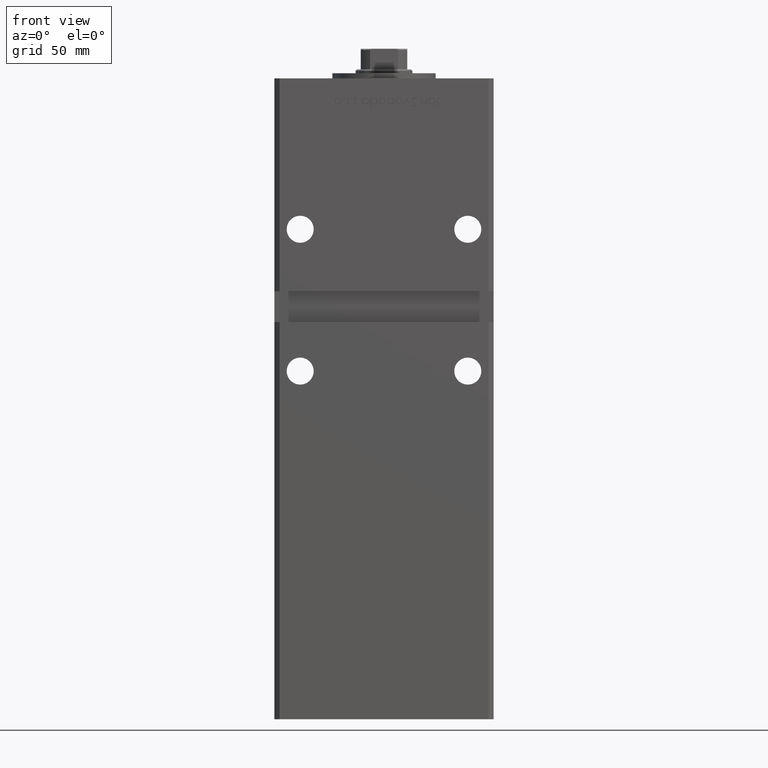
[diagram: clean part render]
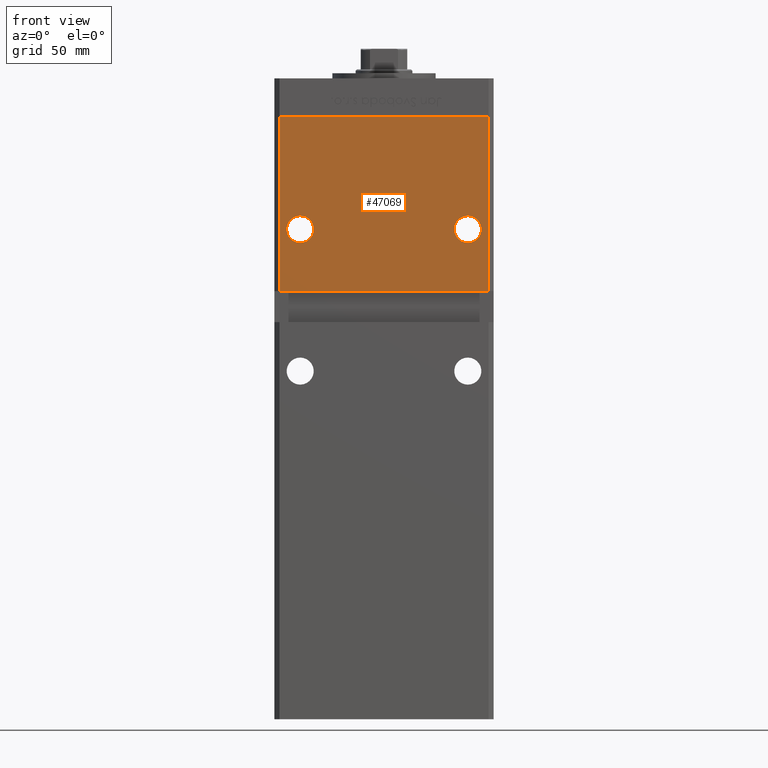
[diagram: same view with one face highlighted and labeled with its STEP entity id]
A machine part, front view. The second image highlights one B-rep face of the part: STEP entity #47069.
In plain terms, the highlighted planar face has unit normal (0, 1, 0).
Its self-contained STEP definition (entity closure, byte-faithful):
#567 = FACE_BOUND ( 'NONE', #22140, .T. ) ;
#740 = DIRECTION ( 'NONE',  ( -1.000000000000000000, -0.000000000000000000, -0.000000000000000000 ) ) ;
#995 = EDGE_CURVE ( 'NONE', #7177, #24782, #27315, .T. ) ;
#1103 = DIRECTION ( 'NONE',  ( 0.000000000000000000, 1.000000000000000000, 0.000000000000000000 ) ) ;
#2657 = DIRECTION ( 'NONE',  ( 0.000000000000000000, 0.000000000000000000, 1.000000000000000000 ) ) ;
#2930 = AXIS2_PLACEMENT_3D ( 'NONE', #42464, #19309, #2657 ) ;
#3134 = ORIENTED_EDGE ( 'NONE', *, *, #44587, .T. ) ;
#4013 = VECTOR ( 'NONE', #20415, 1000.000000000000000 ) ;
#4592 = CARTESIAN_POINT ( 'NONE',  ( 40.49999999999998579, -37.50000000000000711, 218.5000000000000000 ) ) ;
#5963 = CIRCLE ( 'NONE', #35995, 5.250000000000004441 ) ;
#6447 = CARTESIAN_POINT ( 'NONE',  ( -32.50000000000000000, -37.50000000000000711, 169.7500000000000000 ) ) ;
#7177 = VERTEX_POINT ( 'NONE', #4592 ) ;
#7766 = CARTESIAN_POINT ( 'NONE',  ( -32.50000000000000000, -37.50000000000000711, 175.0000000000000284 ) ) ;
#7912 = VERTEX_POINT ( 'NONE', #7919 ) ;
#7919 = CARTESIAN_POINT ( 'NONE',  ( 32.50000000000000000, -37.50000000000000711, 180.2500000000000284 ) ) ;
#9208 = AXIS2_PLACEMENT_3D ( 'NONE', #17582, #10320, #29947 ) ;
#10320 = DIRECTION ( 'NONE',  ( 0.000000000000000000, 1.000000000000000000, 0.000000000000000000 ) ) ;
#10654 = ORIENTED_EDGE ( 'NONE', *, *, #25042, .T. ) ;
#11084 = ORIENTED_EDGE ( 'NONE', *, *, #31094, .T. ) ;
#11175 = DIRECTION ( 'NONE',  ( -0.000000000000000000, -0.000000000000000000, -1.000000000000000000 ) ) ;
#11517 = CIRCLE ( 'NONE', #2930, 5.250000000000004441 ) ;
#11704 = VECTOR ( 'NONE', #48582, 1000.000000000000000 ) ;
#12381 = AXIS2_PLACEMENT_3D ( 'NONE', #7766, #42166, #49950 ) ;
#13584 = CARTESIAN_POINT ( 'NONE',  ( -40.49999999999998579, -37.50000000000000711, 218.5000000000000000 ) ) ;
#14469 = VERTEX_POINT ( 'NONE', #15365 ) ;
#14700 = CARTESIAN_POINT ( 'NONE',  ( 40.49999999999998579, -37.50000000000000711, 218.5000000000000000 ) ) ;
#15365 = CARTESIAN_POINT ( 'NONE',  ( -32.50000000000000000, -37.50000000000000711, 180.2500000000000284 ) ) ;
#15541 = LINE ( 'NONE', #32445, #11704 ) ;
#15657 = VERTEX_POINT ( 'NONE', #6447 ) ;
#16327 = EDGE_LOOP ( 'NONE', ( #24660, #3134 ) ) ;
#17372 = EDGE_CURVE ( 'NONE', #30579, #40798, #15541, .T. ) ;
#17493 = FACE_BOUND ( 'NONE', #16327, .T. ) ;
#17582 = CARTESIAN_POINT ( 'NONE',  ( 32.50000000000000000, -37.50000000000000711, 175.0000000000000284 ) ) ;
#17968 = DIRECTION ( 'NONE',  ( 0.000000000000000000, 1.000000000000000000, 0.000000000000000000 ) ) ;
#18675 = EDGE_CURVE ( 'NONE', #30579, #7177, #44885, .T. ) ;
#19034 = EDGE_CURVE ( 'NONE', #24782, #40798, #30039, .T. ) ;
#19309 = DIRECTION ( 'NONE',  ( 0.000000000000000000, 1.000000000000000000, 0.000000000000000000 ) ) ;
#20365 = CIRCLE ( 'NONE', #9208, 5.250000000000004441 ) ;
#20415 = DIRECTION ( 'NONE',  ( 1.000000000000000000, 0.000000000000000000, 0.000000000000000000 ) ) ;
#20624 = ORIENTED_EDGE ( 'NONE', *, *, #17372, .T. ) ;
#20929 = CARTESIAN_POINT ( 'NONE',  ( 32.50000000000000000, -37.50000000000000711, 169.7500000000000000 ) ) ;
#20969 = FACE_OUTER_BOUND ( 'NONE', #31844, .T. ) ;
#21083 = CARTESIAN_POINT ( 'NONE',  ( 40.49999999999997868, -37.50000000000000711, 151.0000000000000568 ) ) ;
#22140 = EDGE_LOOP ( 'NONE', ( #10654, #11084 ) ) ;
#22652 = CIRCLE ( 'NONE', #12381, 5.250000000000004441 ) ;
#24660 = ORIENTED_EDGE ( 'NONE', *, *, #30119, .T. ) ;
#24782 = VERTEX_POINT ( 'NONE', #21083 ) ;
#25042 = EDGE_CURVE ( 'NONE', #14469, #15657, #5963, .T. ) ;
#25729 = CARTESIAN_POINT ( 'NONE',  ( -42.49999999999998579, -37.50000000000000711, 151.0000000000000568 ) ) ;
#27315 = LINE ( 'NONE', #14700, #40536 ) ;
#29303 = ORIENTED_EDGE ( 'NONE', *, *, #18675, .F. ) ;
#29514 = CARTESIAN_POINT ( 'NONE',  ( -32.50000000000000000, -37.50000000000000711, 175.0000000000000284 ) ) ;
#29853 = PLANE ( 'NONE',  #39349 ) ;
#29947 = DIRECTION ( 'NONE',  ( 0.000000000000000000, 0.000000000000000000, 1.000000000000000000 ) ) ;
#30039 = LINE ( 'NONE', #25729, #34939 ) ;
#30119 = EDGE_CURVE ( 'NONE', #7912, #50070, #11517, .T. ) ;
#30579 = VERTEX_POINT ( 'NONE', #13584 ) ;
#31094 = EDGE_CURVE ( 'NONE', #15657, #14469, #22652, .T. ) ;
#31844 = EDGE_LOOP ( 'NONE', ( #20624, #45249, #46573, #29303 ) ) ;
#32445 = CARTESIAN_POINT ( 'NONE',  ( -40.49999999999998579, -37.50000000000000711, 218.5000000000000000 ) ) ;
#34939 = VECTOR ( 'NONE', #740, 1000.000000000000000 ) ;
#35995 = AXIS2_PLACEMENT_3D ( 'NONE', #29514, #17968, #38389 ) ;
#38389 = DIRECTION ( 'NONE',  ( 0.000000000000000000, 0.000000000000000000, 1.000000000000000000 ) ) ;
#39349 = AXIS2_PLACEMENT_3D ( 'NONE', #41966, #1103, #49485 ) ;
#40536 = VECTOR ( 'NONE', #11175, 1000.000000000000000 ) ;
#40798 = VERTEX_POINT ( 'NONE', #45245 ) ;
#41966 = CARTESIAN_POINT ( 'NONE',  ( -40.49999999999998579, -37.50000000000000711, 218.5000000000000000 ) ) ;
#42166 = DIRECTION ( 'NONE',  ( 0.000000000000000000, 1.000000000000000000, 0.000000000000000000 ) ) ;
#42464 = CARTESIAN_POINT ( 'NONE',  ( 32.50000000000000000, -37.50000000000000711, 175.0000000000000284 ) ) ;
#44587 = EDGE_CURVE ( 'NONE', #50070, #7912, #20365, .T. ) ;
#44885 = LINE ( 'NONE', #52959, #4013 ) ;
#45245 = CARTESIAN_POINT ( 'NONE',  ( -40.49999999999998579, -37.50000000000000711, 151.0000000000000568 ) ) ;
#45249 = ORIENTED_EDGE ( 'NONE', *, *, #19034, .F. ) ;
#46573 = ORIENTED_EDGE ( 'NONE', *, *, #995, .F. ) ;
#47069 = ADVANCED_FACE ( 'NONE', ( #17493, #567, #20969 ), #29853, .F. ) ;
#48582 = DIRECTION ( 'NONE',  ( -0.000000000000000000, -0.000000000000000000, -1.000000000000000000 ) ) ;
#49485 = DIRECTION ( 'NONE',  ( 0.000000000000000000, -0.000000000000000000, 1.000000000000000000 ) ) ;
#49950 = DIRECTION ( 'NONE',  ( 0.000000000000000000, 0.000000000000000000, 1.000000000000000000 ) ) ;
#50070 = VERTEX_POINT ( 'NONE', #20929 ) ;
#52959 = CARTESIAN_POINT ( 'NONE',  ( -40.49999999999998579, -37.50000000000000711, 218.5000000000000000 ) ) ;